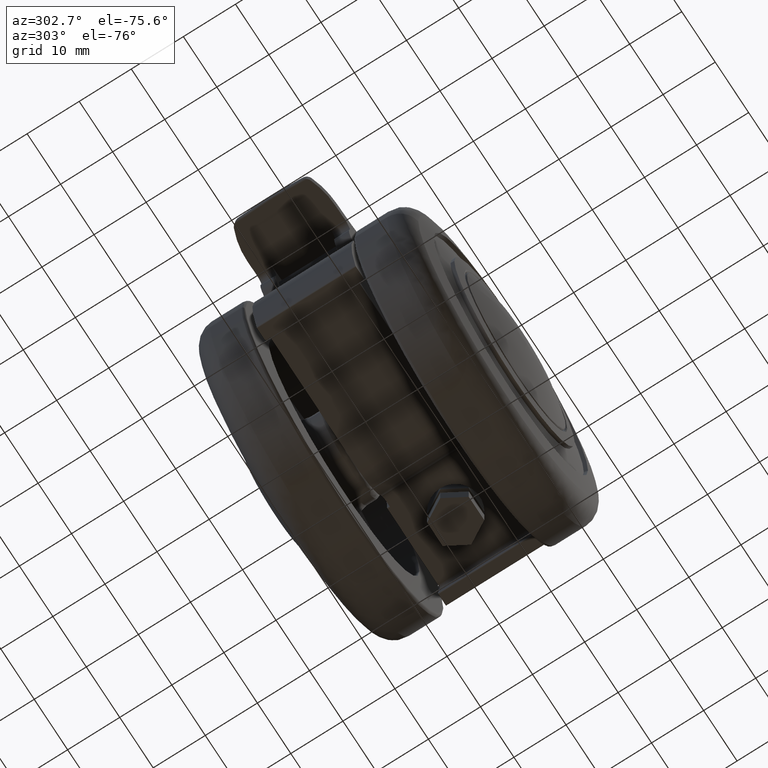
[diagram: clean part render]
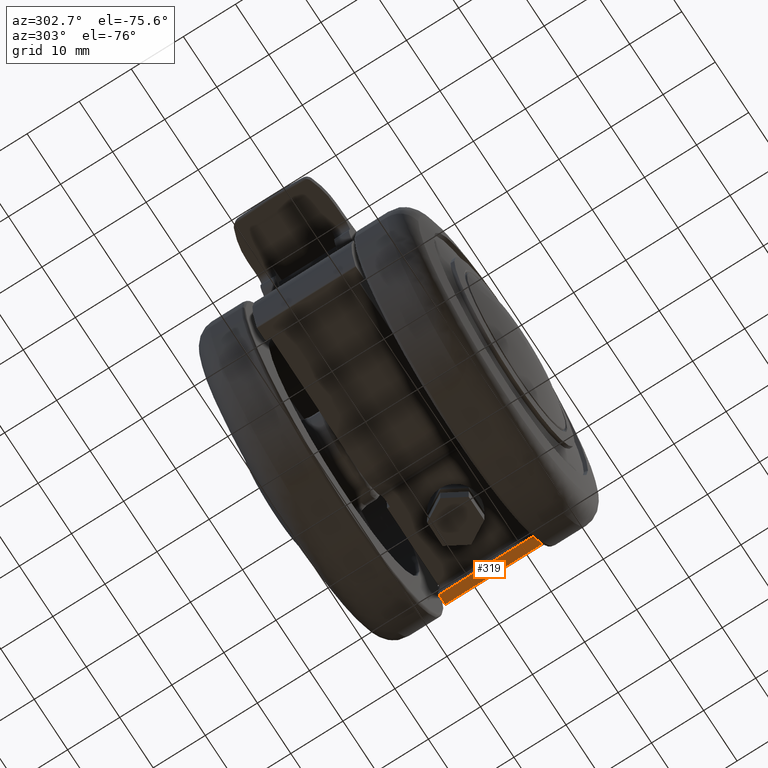
[diagram: same view with one face highlighted and labeled with its STEP entity id]
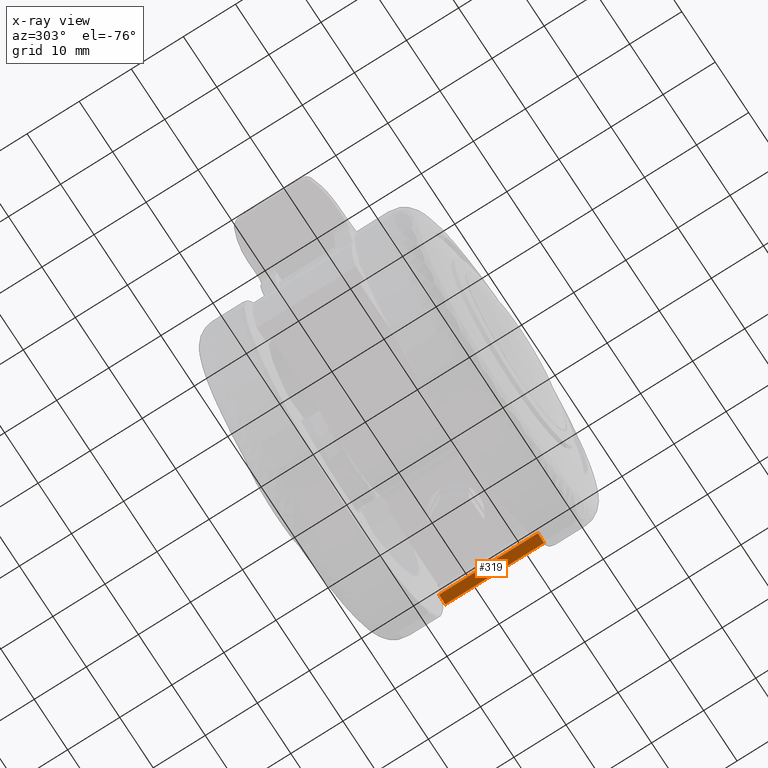
[diagram: x-ray of the same camera — body ghosted, the highlighted face saturated]
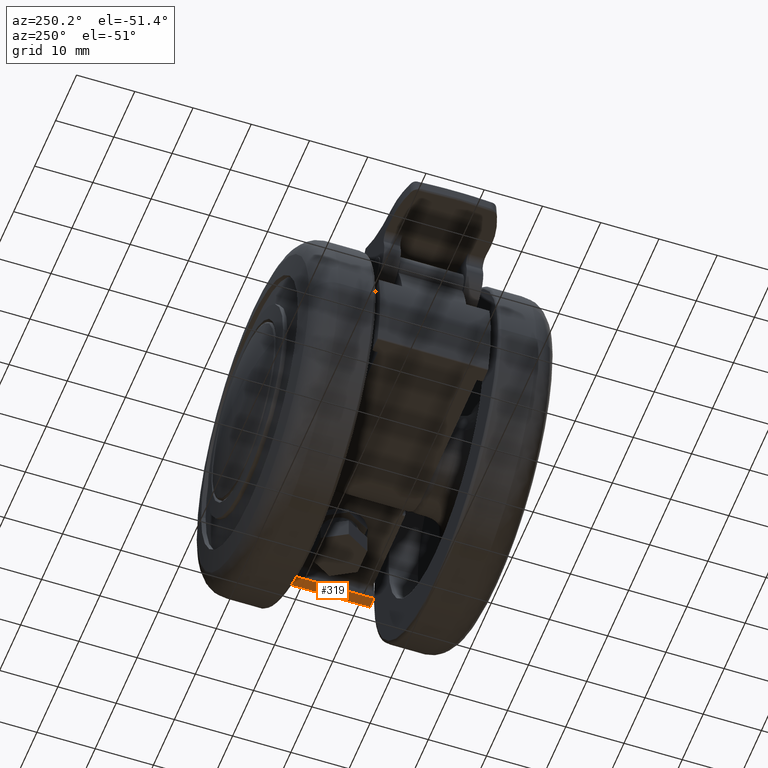
[diagram: same view with one face highlighted and labeled with its STEP entity id]
A machine part, auxiliary view. The second image highlights one B-rep face of the part: STEP entity #319.
The next image is the same camera in x-ray: the body ghosted, the highlighted face saturated — about 2% of this face is hidden behind the body in this view.
A second angle (auxiliary view) of the same face is appended — the face is thin or edge-on in the first view.
In plain terms, the highlighted planar face has unit normal (0, 0, 1).
Its self-contained STEP definition (entity closure, byte-faithful):
#319=ADVANCED_FACE('',(#1673),#1672,.F.);
#1672=PLANE('',#5079);
#1673=FACE_OUTER_BOUND('',#5080,.T.);
#5076=CARTESIAN_POINT('',(2.88515476954E+01,1.14000000000E+01,-3.50000000000E+00));
#5077=DIRECTION('',(0.00000000000E+00,0.00000000000E+00,1.00000000000E+00));
#5078=DIRECTION('',(-1.00000000000E+00,0.00000000000E+00,0.00000000000E+00));
#5079=AXIS2_PLACEMENT_3D('',#5076,#5077,#5078);
#5080=EDGE_LOOP('',(#6442,#6443,#6444,#6445));
#6442=ORIENTED_EDGE('',*,*,#7212,.T.);
#6443=ORIENTED_EDGE('',*,*,#7306,.T.);
#6444=ORIENTED_EDGE('',*,*,#7209,.T.);
#6445=ORIENTED_EDGE('',*,*,#7307,.T.);
#7209=EDGE_CURVE('',#9285,#9335,#9342,.T.);
#7212=EDGE_CURVE('',#9362,#9355,#9363,.T.);
#7306=EDGE_CURVE('',#9355,#9285,#9983,.T.);
#7307=EDGE_CURVE('',#9335,#9362,#9989,.T.);
#9285=VERTEX_POINT('',#12649);
#9335=VERTEX_POINT('',#12689);
#9342=LINE('',#12694,#12695);
#9355=VERTEX_POINT('',#12702);
#9362=VERTEX_POINT('',#12707);
#9363=LINE('',#12708,#12709);
#9983=LINE('',#13394,#13395);
#9989=LINE('',#13397,#13398);
#12649=CARTESIAN_POINT('',(2.67575131125E+01,9.50000000000E+00,-3.50000000000E+00));
#12689=CARTESIAN_POINT('',(2.86611809151E+01,9.50000000000E+00,-3.50000000000E+00));
#12694=CARTESIAN_POINT('',(2.67575131125E+01,9.50000000000E+00,-3.50000000000E+00));
#12695=VECTOR('',#12696,1.90366780269E+00);
#12696=DIRECTION('',(1.00000000000E+00,0.00000000000E+00,0.00000000000E+00));
#12702=CARTESIAN_POINT('',(2.67575131125E+01,-9.50000000000E+00,-3.50000000000E+00));
#12707=CARTESIAN_POINT('',(2.86611809151E+01,-9.50000000000E+00,-3.50000000000E+00));
#12708=CARTESIAN_POINT('',(2.86611809151E+01,-9.50000000000E+00,-3.50000000000E+00));
#12709=VECTOR('',#12710,1.90366780269E+00);
#12710=DIRECTION('',(-1.00000000000E+00,0.00000000000E+00,0.00000000000E+00));
#13394=CARTESIAN_POINT('',(2.67575131125E+01,-9.50000000000E+00,-3.50000000000E+00));
#13395=VECTOR('',#13396,1.90000000000E+01);
#13396=DIRECTION('',(1.86984930463E-16,1.00000000000E+00,0.00000000000E+00));
#13397=CARTESIAN_POINT('',(2.86611809151E+01,9.50000000000E+00,-3.50000000000E+00));
#13398=VECTOR('',#13399,1.90000000000E+01);
#13399=DIRECTION('',(0.00000000000E+00,-1.00000000000E+00,0.00000000000E+00));